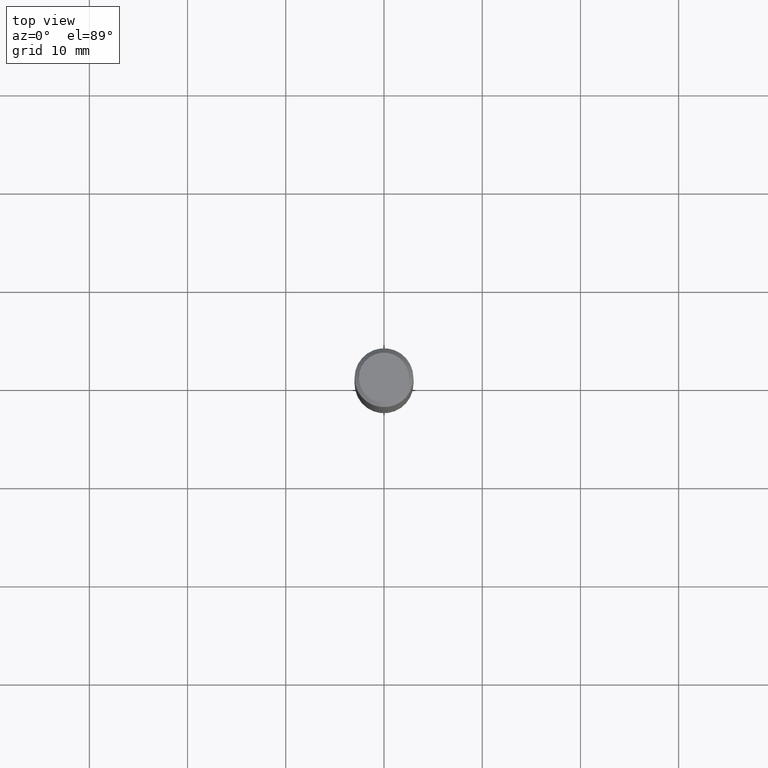
[diagram: clean part render]
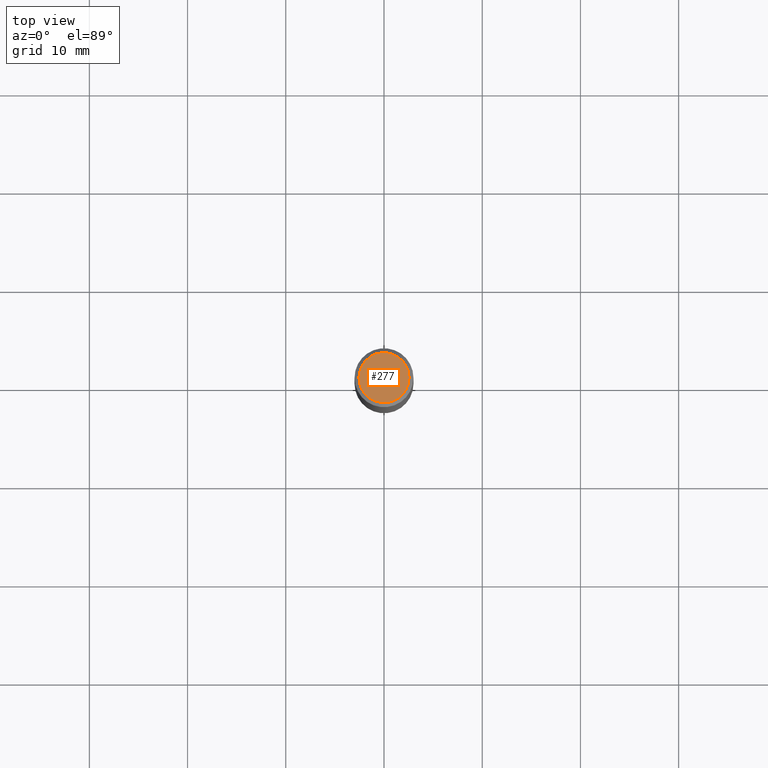
[diagram: same view with one face highlighted and labeled with its STEP entity id]
A machine part, top view. The second image highlights one B-rep face of the part: STEP entity #277.
In plain terms, the highlighted planar face has unit normal (0, -0, -1).
Its self-contained STEP definition (entity closure, byte-faithful):
#23 = PLANE ( 'NONE',  #89 ) ;
#32 = VERTEX_POINT ( 'NONE', #256 ) ;
#33 = EDGE_CURVE ( 'NONE', #32, #249, #412, .T. ) ;
#52 = EDGE_CURVE ( 'NONE', #249, #32, #167, .T. ) ;
#57 = CARTESIAN_POINT ( 'NONE',  ( 5.011033706304132718E-46, -7.154428071060963220E-32, -2.049109640503330010E-17 ) ) ;
#67 = AXIS2_PLACEMENT_3D ( 'NONE', #212, #168, #131 ) ;
#89 = AXIS2_PLACEMENT_3D ( 'NONE', #448, #97, #475 ) ;
#97 = DIRECTION ( 'NONE',  ( 2.438088387897960049E-29, -3.491481338843145188E-15, -1.000000000000000000 ) ) ;
#102 = FACE_OUTER_BOUND ( 'NONE', #429, .T. ) ;
#131 = DIRECTION ( 'NONE',  ( 1.000000000000000000, -6.982962677686266711E-15, 4.875668750515085695E-29 ) ) ;
#151 = ORIENTED_EDGE ( 'NONE', *, *, #33, .T. ) ;
#167 = CIRCLE ( 'NONE', #67, 0.1003850000000000159 ) ;
#168 = DIRECTION ( 'NONE',  ( -2.445468806185136597E-29, 3.491481338843145583E-15, 1.000000000000000000 ) ) ;
#199 = AXIS2_PLACEMENT_3D ( 'NONE', #57, #482, #400 ) ;
#212 = CARTESIAN_POINT ( 'NONE',  ( 5.011033706304132718E-46, -7.154428071060963220E-32, -2.049109640503330010E-17 ) ) ;
#216 = ORIENTED_EDGE ( 'NONE', *, *, #52, .T. ) ;
#249 = VERTEX_POINT ( 'NONE', #449 ) ;
#256 = CARTESIAN_POINT ( 'NONE',  ( -0.1003850000000000159, 7.319105043583384717E-16, -2.049109640503831060E-17 ) ) ;
#277 = ADVANCED_FACE ( 'NONE', ( #102 ), #23, .F. ) ;
#400 = DIRECTION ( 'NONE',  ( 1.000000000000000000, -6.982962677686266711E-15, 4.875668750515085695E-29 ) ) ;
#412 = CIRCLE ( 'NONE', #199, 0.1003850000000000159 ) ;
#429 = EDGE_LOOP ( 'NONE', ( #151, #216 ) ) ;
#448 = CARTESIAN_POINT ( 'NONE',  ( 2.505516853152066359E-46, -3.577214035530481610E-32, -1.024554820251665005E-17 ) ) ;
#449 = CARTESIAN_POINT ( 'NONE',  ( 0.1003850000000000159, -7.803837484803599345E-16, -2.049109640502812012E-17 ) ) ;
#475 = DIRECTION ( 'NONE',  ( -1.000000000000000000, 6.982962677686265922E-15, -4.876176775795935793E-29 ) ) ;
#482 = DIRECTION ( 'NONE',  ( -2.445468806185136597E-29, 3.491481338843145583E-15, 1.000000000000000000 ) ) ;